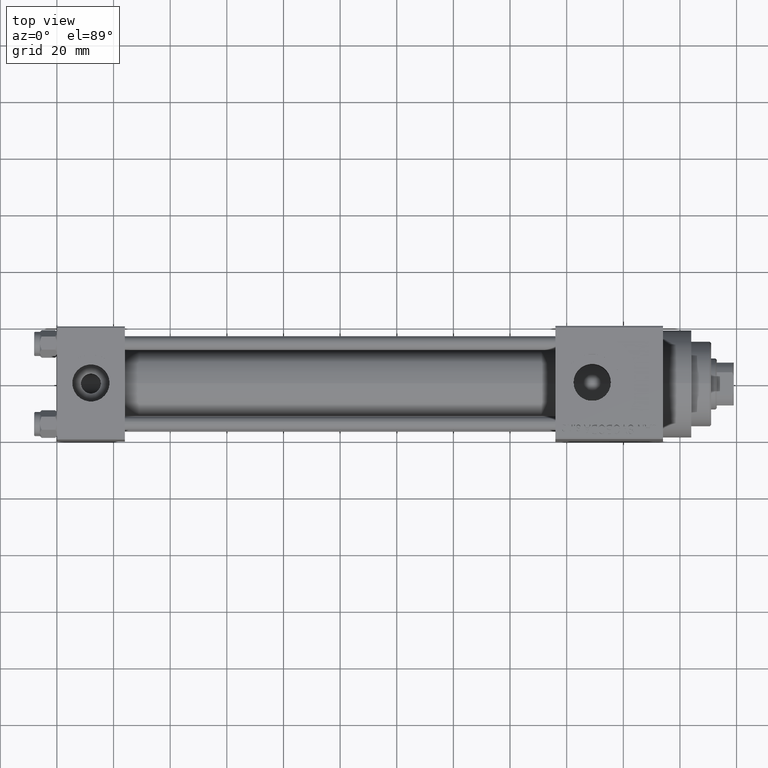
[diagram: clean part render]
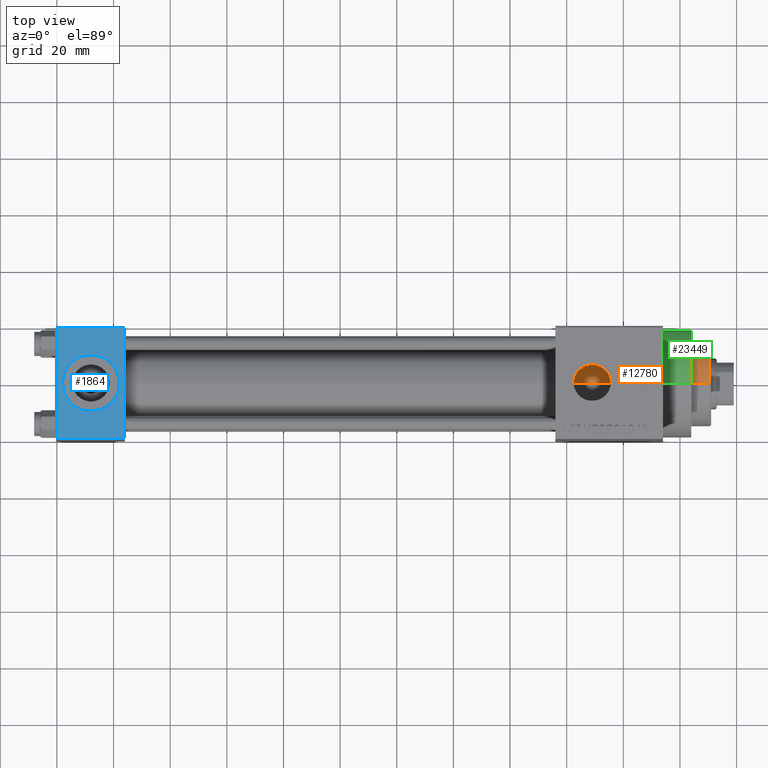
[diagram: same view with three faces highlighted in distinct colors, each labeled with its STEP entity id]
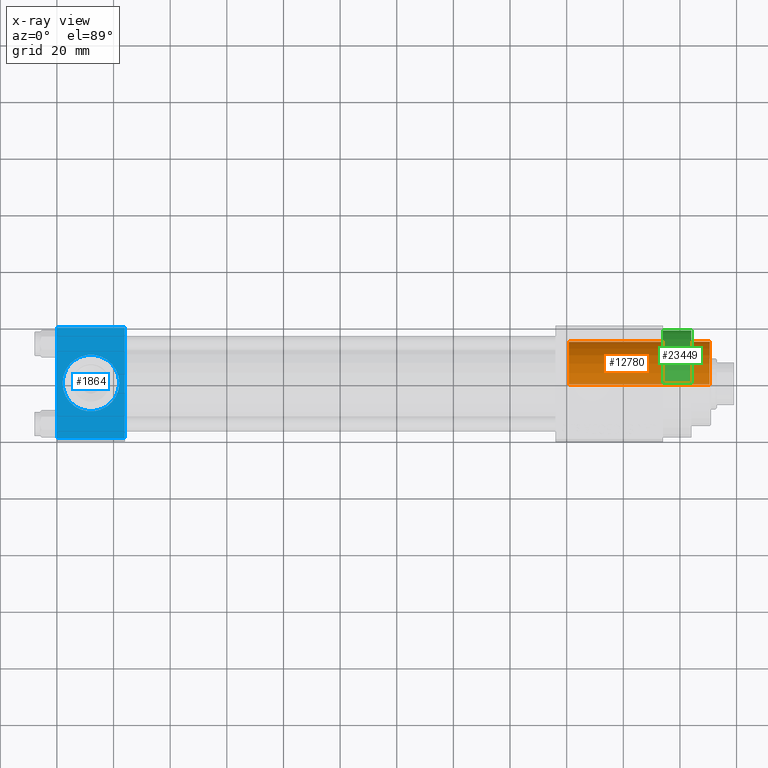
[diagram: x-ray of the same camera — body ghosted, the three highlighted faces saturated]
A machine part, top view with three faces highlighted in distinct colors.
The next image is the same camera in x-ray (body ghosted, the three faces saturated) — at least one of them is partly hidden behind the body in this view.
Their STEP definitions:

[orange] entity #12780 — the highlighted cylindrical surface (partial cylindrical patch) has radius 15 mm, axis along (-1, 0, 0).
#2618 = DIRECTION ( 'NONE',  ( 1.000000000000000000, 0.000000000000000000, 0.000000000000000000 ) ) ;
#2767 = DIRECTION ( 'NONE',  ( -0.000000000000000000, -0.000000000000000000, -1.000000000000000000 ) ) ;
#4732 = DIRECTION ( 'NONE',  ( 1.000000000000000000, 0.000000000000000000, 0.000000000000000000 ) ) ;
#5435 = DIRECTION ( 'NONE',  ( 0.000000000000000000, 0.000000000000000000, 1.000000000000000000 ) ) ;
#6051 = CIRCLE ( 'NONE', #26568, 15.00000000000000000 ) ;
#6205 = CARTESIAN_POINT ( 'NONE',  ( 0.000000000000000000, 0.000000000000000000, 49.75999999999998380 ) ) ;
#9376 = DIRECTION ( 'NONE',  ( -0.000000000000000000, -0.000000000000000000, -1.000000000000000000 ) ) ;
#10070 = CARTESIAN_POINT ( 'NONE',  ( 0.000000000000000000, 0.000000000000000000, 43.25999999999999801 ) ) ;
#10388 = CIRCLE ( 'NONE', #35457, 15.00000000000000000 ) ;
#11724 = CARTESIAN_POINT ( 'NONE',  ( 15.00000000000000000, 1.836970198721029589E-15, 49.75999999999998380 ) ) ;
#12780 = ADVANCED_FACE ( 'NONE', ( #27464 ), #38642, .T. ) ;
#14306 = LINE ( 'NONE', #22155, #17608 ) ;
#14785 = DIRECTION ( 'NONE',  ( -0.000000000000000000, -0.000000000000000000, -1.000000000000000000 ) ) ;
#14920 = EDGE_CURVE ( 'NONE', #34251, #24282, #10388, .T. ) ;
#15194 = CARTESIAN_POINT ( 'NONE',  ( -15.00000000000000000, 0.000000000000000000, 49.75999999999998380 ) ) ;
#15725 = VECTOR ( 'NONE', #2767, 1000.000000000000000 ) ;
#17032 = EDGE_CURVE ( 'NONE', #30907, #34251, #35372, .T. ) ;
#17608 = VECTOR ( 'NONE', #14785, 1000.000000000000000 ) ;
#20309 = DIRECTION ( 'NONE',  ( -1.000000000000000000, 0.000000000000000000, 0.000000000000000000 ) ) ;
#20705 = DIRECTION ( 'NONE',  ( 0.000000000000000000, 0.000000000000000000, -1.000000000000000000 ) ) ;
#22155 = CARTESIAN_POINT ( 'NONE',  ( 15.00000000000000000, 1.836970198721029589E-15, 43.25999999999999801 ) ) ;
#23505 = EDGE_CURVE ( 'NONE', #35724, #30907, #6051, .T. ) ;
#24282 = VERTEX_POINT ( 'NONE', #24624 ) ;
#24401 = ORIENTED_EDGE ( 'NONE', *, *, #17032, .T. ) ;
#24624 = CARTESIAN_POINT ( 'NONE',  ( 15.00000000000000000, 1.836970198721029589E-15, 0.000000000000000000 ) ) ;
#25232 = CARTESIAN_POINT ( 'NONE',  ( -15.00000000000000000, 0.000000000000000000, 0.000000000000000000 ) ) ;
#26568 = AXIS2_PLACEMENT_3D ( 'NONE', #6205, #20705, #2618 ) ;
#27464 = FACE_OUTER_BOUND ( 'NONE', #34945, .T. ) ;
#29656 = ORIENTED_EDGE ( 'NONE', *, *, #34233, .F. ) ;
#30907 = VERTEX_POINT ( 'NONE', #15194 ) ;
#31625 = AXIS2_PLACEMENT_3D ( 'NONE', #10070, #9376, #20309 ) ;
#32982 = ORIENTED_EDGE ( 'NONE', *, *, #14920, .T. ) ;
#34233 = EDGE_CURVE ( 'NONE', #35724, #24282, #14306, .T. ) ;
#34251 = VERTEX_POINT ( 'NONE', #25232 ) ;
#34945 = EDGE_LOOP ( 'NONE', ( #29656, #43511, #24401, #32982 ) ) ;
#35143 = CARTESIAN_POINT ( 'NONE',  ( -15.00000000000000000, 0.000000000000000000, 43.25999999999999801 ) ) ;
#35372 = LINE ( 'NONE', #35143, #15725 ) ;
#35457 = AXIS2_PLACEMENT_3D ( 'NONE', #37332, #5435, #4732 ) ;
#35724 = VERTEX_POINT ( 'NONE', #11724 ) ;
#37332 = CARTESIAN_POINT ( 'NONE',  ( 0.000000000000000000, 0.000000000000000000, 0.000000000000000000 ) ) ;
#38642 = CYLINDRICAL_SURFACE ( 'NONE', #31625, 15.00000000000000000 ) ;
#43511 = ORIENTED_EDGE ( 'NONE', *, *, #23505, .T. ) ;

[blue] entity #1864 — the highlighted planar face has unit normal (0, 0, -1).
#839 = EDGE_LOOP ( 'NONE', ( #36051, #14129, #8700, #20401 ) ) ;
#1400 = DIRECTION ( 'NONE',  ( 0.000000000000000000, 2.602085213965210149E-16, -1.000000000000000000 ) ) ;
#1864 = ADVANCED_FACE ( 'NONE', ( #44970, #26620 ), #8767, .F. ) ;
#2018 = EDGE_CURVE ( 'NONE', #15460, #44333, #9007, .T. ) ;
#2926 = VERTEX_POINT ( 'NONE', #42795 ) ;
#4268 = CARTESIAN_POINT ( 'NONE',  ( 24.00000000000000000, 20.00000000000000000, 20.00000000000000000 ) ) ;
#4817 = VECTOR ( 'NONE', #44010, 1000.000000000000000 ) ;
#5678 = DIRECTION ( 'NONE',  ( 0.000000000000000000, -1.000000000000000000, -2.602085213965210149E-16 ) ) ;
#6079 = CARTESIAN_POINT ( 'NONE',  ( 24.00000000000000000, 19.50000000000000000, 20.00000000000000000 ) ) ;
#8700 = ORIENTED_EDGE ( 'NONE', *, *, #2018, .F. ) ;
#8767 = PLANE ( 'NONE',  #9390 ) ;
#9007 = LINE ( 'NONE', #41620, #24586 ) ;
#9390 = AXIS2_PLACEMENT_3D ( 'NONE', #4268, #1400, #18775 ) ;
#10725 = LINE ( 'NONE', #29040, #18096 ) ;
#11152 = CARTESIAN_POINT ( 'NONE',  ( 2.000000000000003553, 1.224646799147354440E-15, 19.99999999999999645 ) ) ;
#12231 = CIRCLE ( 'NONE', #24379, 9.999999999999998224 ) ;
#13038 = CARTESIAN_POINT ( 'NONE',  ( 12.00000000000000000, 1.540743955509788682E-30, 19.99999999999999645 ) ) ;
#14129 = ORIENTED_EDGE ( 'NONE', *, *, #37167, .T. ) ;
#15460 = VERTEX_POINT ( 'NONE', #6079 ) ;
#16832 = DIRECTION ( 'NONE',  ( 0.000000000000000000, 0.000000000000000000, 1.000000000000000000 ) ) ;
#18096 = VECTOR ( 'NONE', #25219, 1000.000000000000000 ) ;
#18527 = LINE ( 'NONE', #21382, #4817 ) ;
#18775 = DIRECTION ( 'NONE',  ( 0.000000000000000000, 1.000000000000000000, 2.602085213965210149E-16 ) ) ;
#19463 = DIRECTION ( 'NONE',  ( 0.000000000000000000, 0.000000000000000000, 1.000000000000000000 ) ) ;
#20114 = EDGE_CURVE ( 'NONE', #15460, #20838, #10725, .T. ) ;
#20401 = ORIENTED_EDGE ( 'NONE', *, *, #20114, .T. ) ;
#20757 = EDGE_LOOP ( 'NONE', ( #45099, #22880 ) ) ;
#20838 = VERTEX_POINT ( 'NONE', #23831 ) ;
#21243 = VERTEX_POINT ( 'NONE', #11152 ) ;
#21382 = CARTESIAN_POINT ( 'NONE',  ( 24.00000000000000000, -19.49999999999999289, 19.99999999999998934 ) ) ;
#22267 = LINE ( 'NONE', #30115, #43463 ) ;
#22737 = AXIS2_PLACEMENT_3D ( 'NONE', #36200, #19463, #33997 ) ;
#22880 = ORIENTED_EDGE ( 'NONE', *, *, #41744, .F. ) ;
#23831 = CARTESIAN_POINT ( 'NONE',  ( 0.000000000000000000, 19.50000000000000000, 20.00000000000000000 ) ) ;
#24379 = AXIS2_PLACEMENT_3D ( 'NONE', #13038, #16832, #42305 ) ;
#24586 = VECTOR ( 'NONE', #5678, 1000.000000000000000 ) ;
#25219 = DIRECTION ( 'NONE',  ( -1.000000000000000000, 0.000000000000000000, 0.000000000000000000 ) ) ;
#26071 = DIRECTION ( 'NONE',  ( 0.000000000000000000, -1.000000000000000000, -2.602085213965210149E-16 ) ) ;
#26419 = CARTESIAN_POINT ( 'NONE',  ( 24.00000000000000000, -19.49999999999999289, 19.99999999999998934 ) ) ;
#26620 = FACE_OUTER_BOUND ( 'NONE', #839, .T. ) ;
#27048 = EDGE_CURVE ( 'NONE', #27519, #21243, #12231, .T. ) ;
#27519 = VERTEX_POINT ( 'NONE', #39975 ) ;
#29040 = CARTESIAN_POINT ( 'NONE',  ( 0.000000000000000000, 19.50000000000000000, 20.00000000000000000 ) ) ;
#30115 = CARTESIAN_POINT ( 'NONE',  ( 0.000000000000000000, 20.00000000000000000, 20.00000000000000000 ) ) ;
#33480 = EDGE_CURVE ( 'NONE', #20838, #2926, #22267, .T. ) ;
#33997 = DIRECTION ( 'NONE',  ( 1.000000000000000000, 0.000000000000000000, 0.000000000000000000 ) ) ;
#36051 = ORIENTED_EDGE ( 'NONE', *, *, #33480, .T. ) ;
#36200 = CARTESIAN_POINT ( 'NONE',  ( 12.00000000000000000, 1.540743955509788682E-30, 19.99999999999999645 ) ) ;
#37167 = EDGE_CURVE ( 'NONE', #2926, #44333, #18527, .T. ) ;
#38681 = CIRCLE ( 'NONE', #22737, 9.999999999999998224 ) ;
#39975 = CARTESIAN_POINT ( 'NONE',  ( 22.00000000000000000, 1.540743955509788682E-30, 19.99999999999999645 ) ) ;
#41620 = CARTESIAN_POINT ( 'NONE',  ( 24.00000000000000000, 20.00000000000000000, 20.00000000000000000 ) ) ;
#41744 = EDGE_CURVE ( 'NONE', #21243, #27519, #38681, .T. ) ;
#42305 = DIRECTION ( 'NONE',  ( 1.000000000000000000, 0.000000000000000000, 0.000000000000000000 ) ) ;
#42795 = CARTESIAN_POINT ( 'NONE',  ( 0.000000000000000000, -19.49999999999999289, 19.99999999999998934 ) ) ;
#43463 = VECTOR ( 'NONE', #26071, 1000.000000000000000 ) ;
#44010 = DIRECTION ( 'NONE',  ( 1.000000000000000000, 0.000000000000000000, 0.000000000000000000 ) ) ;
#44333 = VERTEX_POINT ( 'NONE', #26419 ) ;
#44970 = FACE_BOUND ( 'NONE', #20757, .T. ) ;
#45099 = ORIENTED_EDGE ( 'NONE', *, *, #27048, .F. ) ;

[green] entity #23449 — the highlighted cylindrical surface (partial cylindrical patch) has radius 19 mm, axis along (-1, -0, -0).
#848 = CARTESIAN_POINT ( 'NONE',  ( 224.0000000000000000, 0.000000000000000000, 0.000000000000000000 ) ) ;
#1083 = DIRECTION ( 'NONE',  ( 1.000000000000000000, 0.000000000000000000, 0.000000000000000000 ) ) ;
#1785 = ORIENTED_EDGE ( 'NONE', *, *, #6371, .F. ) ;
#2381 = DIRECTION ( 'NONE',  ( 1.000000000000000000, 0.000000000000000000, 0.000000000000000000 ) ) ;
#2786 = VERTEX_POINT ( 'NONE', #36695 ) ;
#3636 = CARTESIAN_POINT ( 'NONE',  ( 224.0000000000000000, 2.326828918379970970E-15, -19.00000000000000000 ) ) ;
#4334 = DIRECTION ( 'NONE',  ( 0.000000000000000000, 0.000000000000000000, 1.000000000000000000 ) ) ;
#5566 = DIRECTION ( 'NONE',  ( -1.000000000000000000, -0.000000000000000000, -0.000000000000000000 ) ) ;
#6371 = EDGE_CURVE ( 'NONE', #12891, #35300, #42212, .T. ) ;
#6659 = CARTESIAN_POINT ( 'NONE',  ( 214.0000000000000000, 0.000000000000000000, 0.000000000000000000 ) ) ;
#9530 = DIRECTION ( 'NONE',  ( 0.000000000000000000, 0.000000000000000000, -1.000000000000000000 ) ) ;
#11910 = EDGE_CURVE ( 'NONE', #35300, #2786, #16736, .T. ) ;
#12891 = VERTEX_POINT ( 'NONE', #3636 ) ;
#13391 = VECTOR ( 'NONE', #5566, 1000.000000000000000 ) ;
#16736 = LINE ( 'NONE', #24336, #13391 ) ;
#17213 = LINE ( 'NONE', #38419, #39497 ) ;
#18170 = AXIS2_PLACEMENT_3D ( 'NONE', #6659, #2381, #9530 ) ;
#18714 = CARTESIAN_POINT ( 'NONE',  ( 214.0000000000000000, 2.326828918379970970E-15, -19.00000000000000000 ) ) ;
#20467 = AXIS2_PLACEMENT_3D ( 'NONE', #22407, #36925, #4334 ) ;
#21889 = VERTEX_POINT ( 'NONE', #18714 ) ;
#22407 = CARTESIAN_POINT ( 'NONE',  ( 224.0000000000000000, 0.000000000000000000, 0.000000000000000000 ) ) ;
#22604 = EDGE_LOOP ( 'NONE', ( #1785, #34141, #42833, #29022 ) ) ;
#22808 = EDGE_CURVE ( 'NONE', #21889, #2786, #30343, .T. ) ;
#23449 = ADVANCED_FACE ( 'NONE', ( #29557 ), #40512, .T. ) ;
#24336 = CARTESIAN_POINT ( 'NONE',  ( 224.0000000000000000, 0.000000000000000000, 19.00000000000000000 ) ) ;
#25338 = EDGE_CURVE ( 'NONE', #12891, #21889, #17213, .T. ) ;
#25824 = DIRECTION ( 'NONE',  ( 0.000000000000000000, 0.000000000000000000, -1.000000000000000000 ) ) ;
#29022 = ORIENTED_EDGE ( 'NONE', *, *, #11910, .F. ) ;
#29557 = FACE_OUTER_BOUND ( 'NONE', #22604, .T. ) ;
#30343 = CIRCLE ( 'NONE', #18170, 19.00000000000000000 ) ;
#33063 = CARTESIAN_POINT ( 'NONE',  ( 224.0000000000000000, 0.000000000000000000, 19.00000000000000000 ) ) ;
#34141 = ORIENTED_EDGE ( 'NONE', *, *, #25338, .T. ) ;
#35300 = VERTEX_POINT ( 'NONE', #33063 ) ;
#36695 = CARTESIAN_POINT ( 'NONE',  ( 214.0000000000000000, 0.000000000000000000, 19.00000000000000000 ) ) ;
#36925 = DIRECTION ( 'NONE',  ( -1.000000000000000000, -0.000000000000000000, -0.000000000000000000 ) ) ;
#38419 = CARTESIAN_POINT ( 'NONE',  ( 224.0000000000000000, 2.326828918379970970E-15, -19.00000000000000000 ) ) ;
#38890 = DIRECTION ( 'NONE',  ( -1.000000000000000000, -0.000000000000000000, -0.000000000000000000 ) ) ;
#39497 = VECTOR ( 'NONE', #38890, 1000.000000000000000 ) ;
#40512 = CYLINDRICAL_SURFACE ( 'NONE', #20467, 19.00000000000000000 ) ;
#40709 = AXIS2_PLACEMENT_3D ( 'NONE', #848, #1083, #25824 ) ;
#42212 = CIRCLE ( 'NONE', #40709, 19.00000000000000000 ) ;
#42833 = ORIENTED_EDGE ( 'NONE', *, *, #22808, .T. ) ;